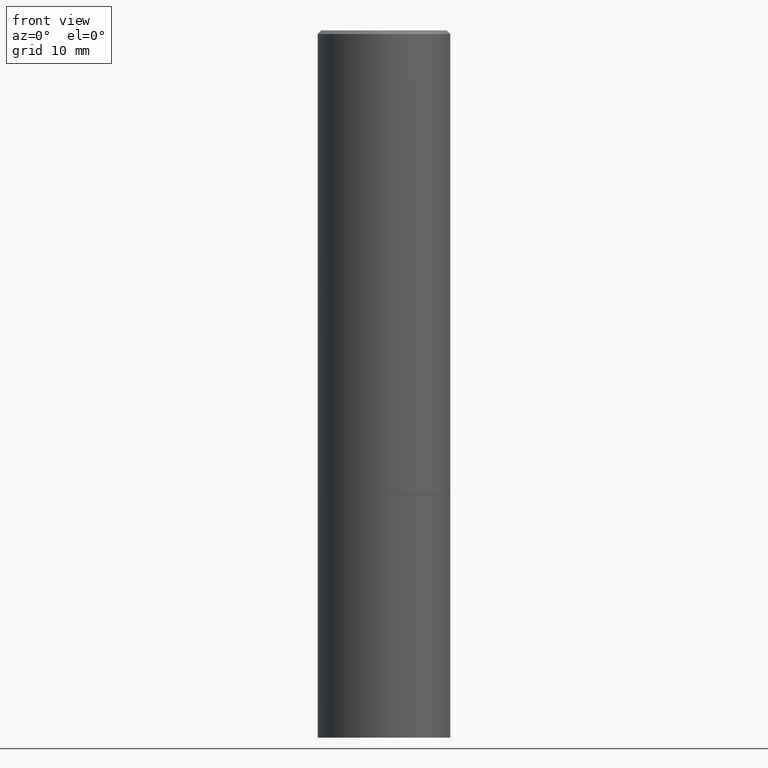
[diagram: clean part render]
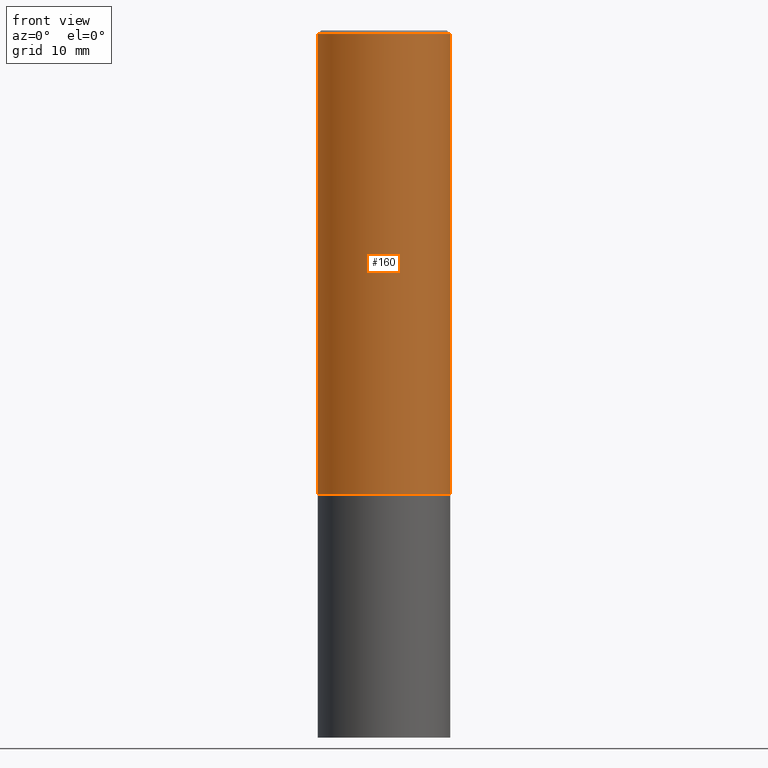
[diagram: same view with one face highlighted and labeled with its STEP entity id]
A machine part, front view. The second image highlights one B-rep face of the part: STEP entity #160.
In plain terms, the highlighted cylindrical surface (partial cylindrical patch) has radius 9.525 mm, axis along (-0, 0, 1).
Its self-contained STEP definition (entity closure, byte-faithful):
#14 = CIRCLE ( 'NONE', #211, 0.3750000000000000555 ) ;
#18 = CARTESIAN_POINT ( 'NONE',  ( -0.3749999999999998335, 2.664535259100374514E-15, -1.844600658845588757E-29 ) ) ;
#29 = LINE ( 'NONE', #133, #301 ) ;
#30 = DIRECTION ( 'NONE',  ( 1.000000000000000000, -6.982962677686266711E-15, 0.000000000000000000 ) ) ;
#36 = EDGE_CURVE ( 'NONE', #353, #83, #238, .T. ) ;
#37 = ORIENTED_EDGE ( 'NONE', *, *, #347, .T. ) ;
#40 = AXIS2_PLACEMENT_3D ( 'NONE', #79, #208, #147 ) ;
#42 = FACE_OUTER_BOUND ( 'NONE', #138, .T. ) ;
#45 = DIRECTION ( 'NONE',  ( -2.445468806185136877E-29, 3.491481338843145188E-15, 1.000000000000000000 ) ) ;
#62 = CARTESIAN_POINT ( 'NONE',  ( 6.416910147429799085E-29, -9.161647033124413605E-15, -2.624000000000000110 ) ) ;
#79 = CARTESIAN_POINT ( 'NONE',  ( 0.000000000000000000, 0.000000000000000000, 0.000000000000000000 ) ) ;
#83 = VERTEX_POINT ( 'NONE', #294 ) ;
#110 = ORIENTED_EDGE ( 'NONE', *, *, #36, .F. ) ;
#133 = CARTESIAN_POINT ( 'NONE',  ( 0.3749999999999998335, -2.618611004132348439E-15, 1.828566290923475082E-29 ) ) ;
#138 = EDGE_LOOP ( 'NONE', ( #110, #37, #254, #223 ) ) ;
#147 = DIRECTION ( 'NONE',  ( 1.000000000000000000, -6.982962677686265922E-15, 4.876176775795935793E-29 ) ) ;
#160 = ADVANCED_FACE ( 'NONE', ( #42 ), #235, .T. ) ;
#175 = CARTESIAN_POINT ( 'NONE',  ( 0.3749999999999996114, -2.642516375941185268E-15, -0.02000000000000008715 ) ) ;
#201 = CIRCLE ( 'NONE', #261, 0.3749999999999996114 ) ;
#208 = DIRECTION ( 'NONE',  ( -2.445468806185136597E-29, 3.491481338843145583E-15, 1.000000000000000000 ) ) ;
#209 = DIRECTION ( 'NONE',  ( -2.445468806185136597E-29, 3.491481338843145583E-15, 1.000000000000000000 ) ) ;
#211 = AXIS2_PLACEMENT_3D ( 'NONE', #62, #209, #329 ) ;
#223 = ORIENTED_EDGE ( 'NONE', *, *, #272, .F. ) ;
#235 = CYLINDRICAL_SURFACE ( 'NONE', #40, 0.3749999999999998335 ) ;
#238 = LINE ( 'NONE', #18, #330 ) ;
#254 = ORIENTED_EDGE ( 'NONE', *, *, #311, .T. ) ;
#258 = DIRECTION ( 'NONE',  ( -2.445468806185136877E-29, 3.491481338843145188E-15, 1.000000000000000000 ) ) ;
#261 = AXIS2_PLACEMENT_3D ( 'NONE', #344, #281, #30 ) ;
#272 = EDGE_CURVE ( 'NONE', #83, #349, #201, .T. ) ;
#281 = DIRECTION ( 'NONE',  ( -2.445468806185136597E-29, 3.491481338843145583E-15, 1.000000000000000000 ) ) ;
#294 = CARTESIAN_POINT ( 'NONE',  ( -0.3749999999999996114, 2.548781377355483957E-15, -0.02000000000000008715 ) ) ;
#301 = VECTOR ( 'NONE', #258, 39.37007874015748143 ) ;
#311 = EDGE_CURVE ( 'NONE', #345, #349, #29, .T. ) ;
#317 = CARTESIAN_POINT ( 'NONE',  ( 0.3750000000000000555, -1.178025803725676520E-14, -2.624000000000000110 ) ) ;
#329 = DIRECTION ( 'NONE',  ( 1.000000000000000000, -6.982962677686266711E-15, 0.000000000000000000 ) ) ;
#330 = VECTOR ( 'NONE', #45, 39.37007874015748143 ) ;
#339 = CARTESIAN_POINT ( 'NONE',  ( -0.3749999999999999445, -1.951203070850261571E-15, -2.624000000000000110 ) ) ;
#344 = CARTESIAN_POINT ( 'NONE',  ( 4.890937612370294178E-31, -6.982962677686321191E-17, -0.02000000000000008715 ) ) ;
#345 = VERTEX_POINT ( 'NONE', #317 ) ;
#347 = EDGE_CURVE ( 'NONE', #353, #345, #14, .T. ) ;
#349 = VERTEX_POINT ( 'NONE', #175 ) ;
#353 = VERTEX_POINT ( 'NONE', #339 ) ;